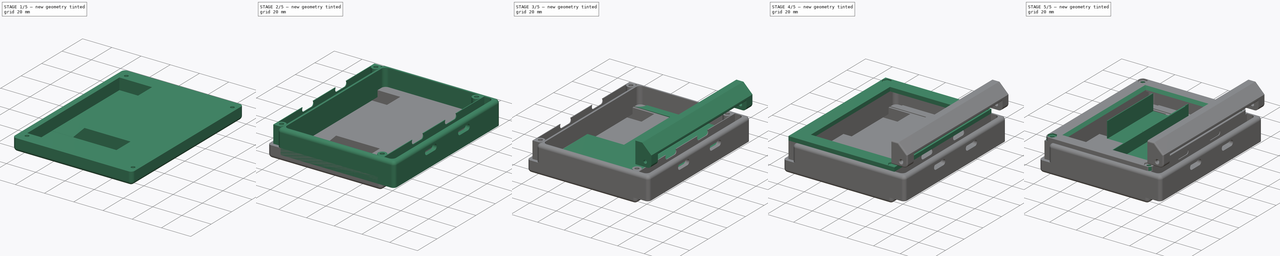
[diagram: build sequence overview — one tinted view per stage of 5, left to right]
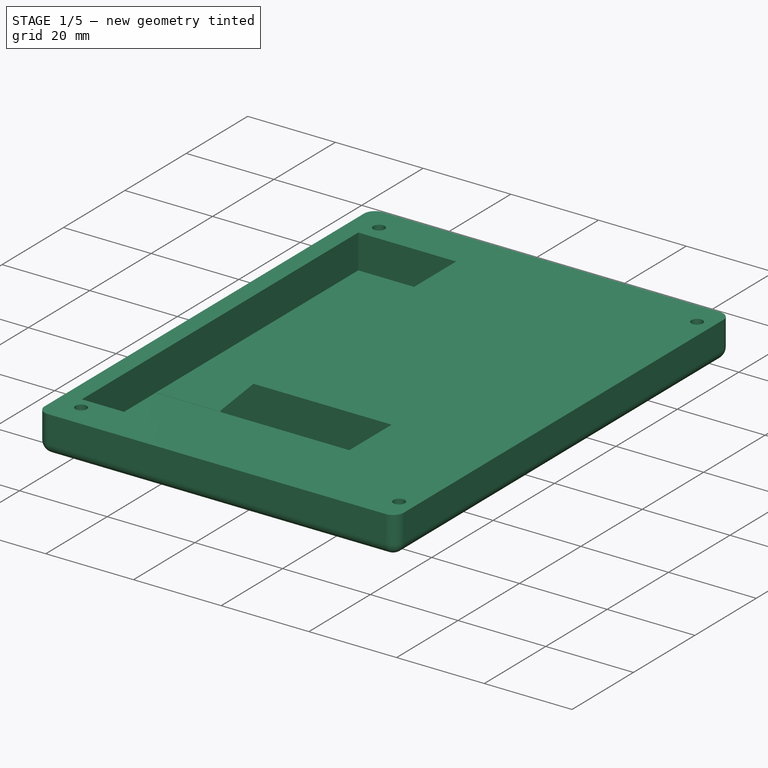
[diagram: stage 1 of 5 — iso view after this stage's code; geometry added in this stage tinted green]
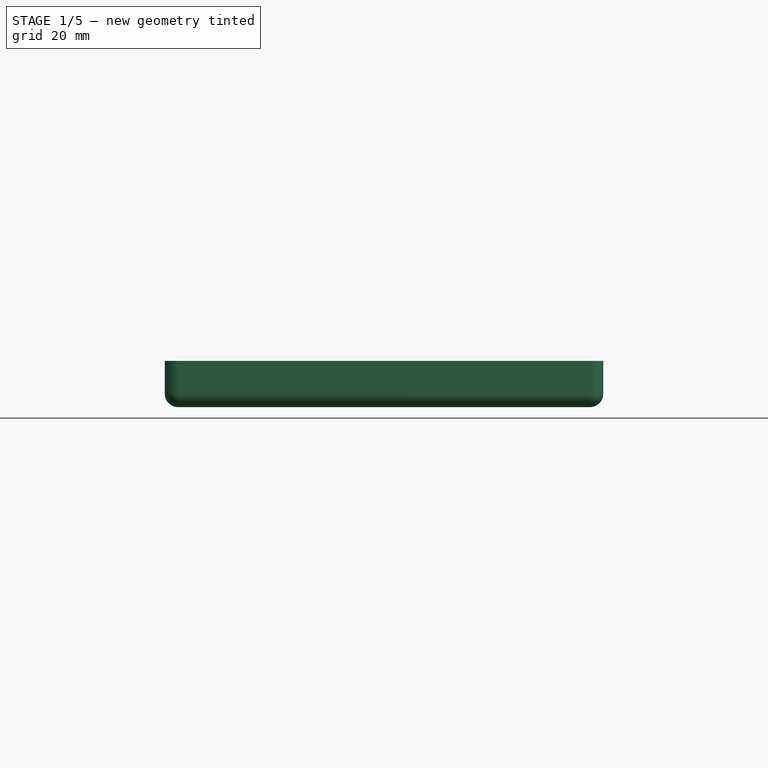
[diagram: stage 1 of 5 — front view after this stage's code; geometry added in this stage tinted green]
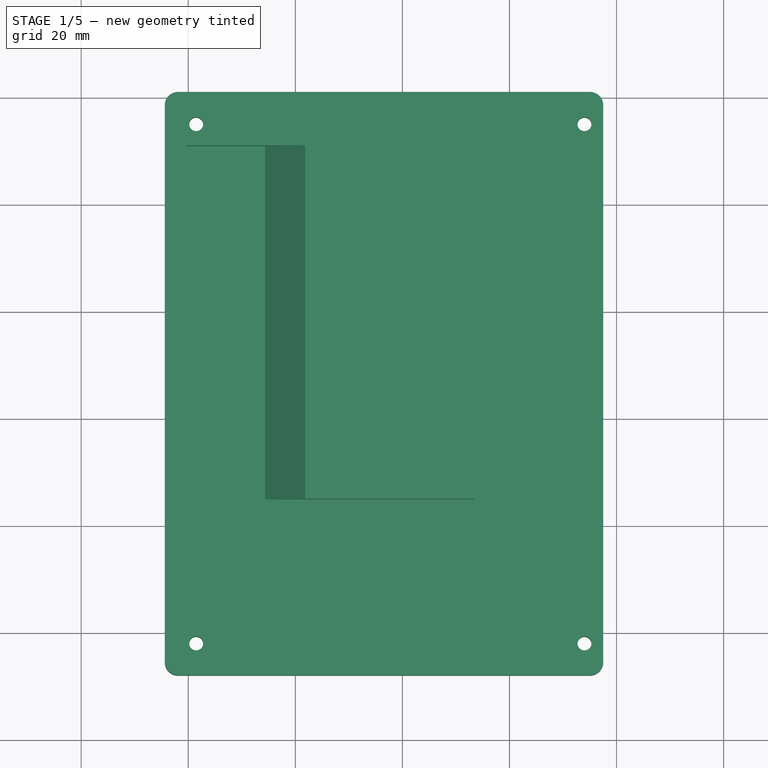
[diagram: stage 1 of 5 — top view after this stage's code; geometry added in this stage tinted green]
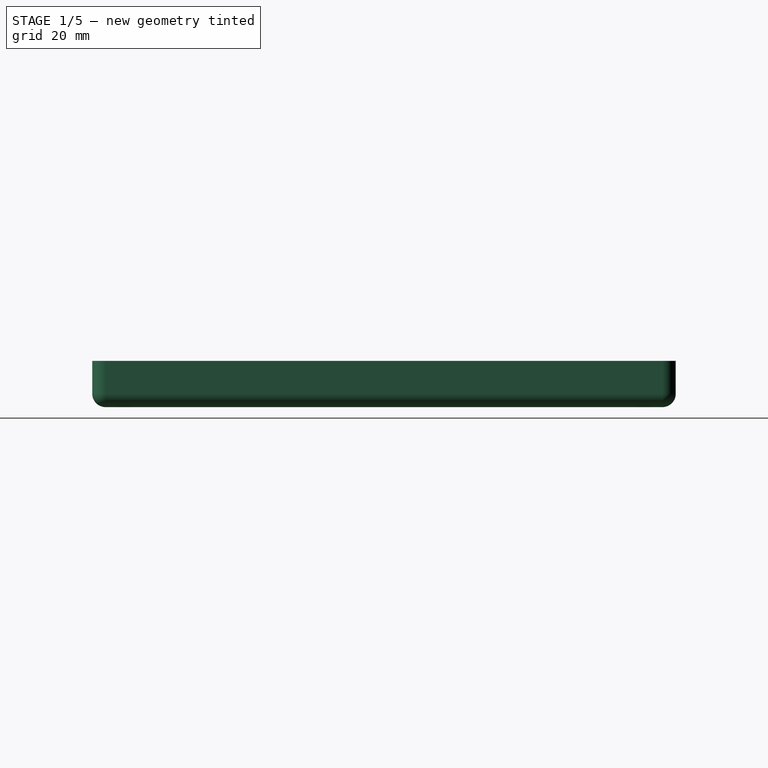
[diagram: stage 1 of 5 — right view after this stage's code; geometry added in this stage tinted green]
FCSTD DOCUMENT  (FreeCAD 0.21R33771 (Git))
Label: battery-side
License: All rights reserved
LicenseURL: https://en.wikipedia.org/wiki/All_rights_reserved
objects: Sketcher::SketchObject×19, PartDesign::Pocket×11, PartDesign::Body×9, PartDesign::Pad×8, PartDesign::Fillet×8, App::Part×7, PartDesign::Chamfer×6
note: 94 computed .brp shape members not serialized (recipe doc carries the construction recipe); baked Part::Feature solids carry a one-line shape summary decoded from their .brp

FEATURE [PartDesign::Body] Body002
  Group = -> [Sketch002,Pad002,Sketch059,Pocket026]
  Origin = -> Origin005
  Tip = -> Pocket026
FEATURE [App::Part] Part002  label="epaper module tray"
  Group = -> [Body002]
  Origin = -> Origin004
  Placement = pos=(7,0,0) rot=(0,0,1;0rad)
FEATURE [Sketcher::SketchObject] Sketch060
  AttachmentOffset = pos=(0,0,-61) rot=(0,0,1;0rad)
  FullyConstrained = false
  MapMode = 5
  Placement = pos=(0,61,1.35e-14) rot=(1,0,0;1.5708rad)
  Support = -> [XZ_Plane056]
  sketch-geometry (4):
    g0: LineSegment StartX=-44.4037 StartY=-12.5015 StartZ=0 EndX=37.5266 EndY=-12.5015 EndZ=0
    g1: LineSegment StartX=37.5266 StartY=-12.5015 StartZ=0 EndX=37.5266 EndY=-21.1381 EndZ=0
    g2: LineSegment StartX=37.5266 StartY=-21.1381 StartZ=0 EndX=-44.4037 EndY=-21.1381 EndZ=0
    g3: LineSegment StartX=-44.4037 StartY=-21.1381 StartZ=0 EndX=-44.4037 EndY=-12.5015 EndZ=0
  constraints (8):
    c: Coincident(g0,g1)
    c: Coincident(g1,g2)
    c: Coincident(g2,g3)
    c: Coincident(g3,g0)
    c: Horizontal(g0)
    c: Horizontal(g2)
    c: Vertical(g1)
    c: Vertical(g3)
FEATURE [PartDesign::Pad] Pad014
  Direction = (0,-1,2e-16)
  Length = 109
  Length2 = 10
  Placement = pos=(0,0,0) rot=(1,0,0;1.5708rad)
  Profile = -> Sketch060
  ReferenceAxis = -> Sketch060 [N_Axis]
  Type = 0
FEATURE [PartDesign::Fillet] Fillet032  label="Fillet033"
  Base = -> Pad014 [Edge11,Edge6,Edge9,Edge8,Edge5,Edge7,Edge10,Edge12]
  BaseFeature = -> Pad014
  Placement = pos=(0,0,0) rot=(1,0,0;1.5708rad)
  Radius = 2.5
  SupportTransform = false
  UseAllEdges = false
FEATURE [Sketcher::SketchObject] Sketch061
  AttachmentOffset = pos=(0,0,39) rot=(0,0,1;0rad)
  FullyConstrained = false
  MapMode = 5
  Placement = pos=(0,-39,-8.7e-15) rot=(1,0,0;1.5708rad)
  Support = -> [XZ_Plane056]
  sketch-geometry (4):
    g0: LineSegment StartX=13.3456 StartY=-20.3299 StartZ=0 EndX=-40.4767 EndY=-20.3299 EndZ=0
    g1: LineSegment StartX=-40.4767 StartY=-20.3299 StartZ=0 EndX=-40.4767 EndY=-1.29457 EndZ=0
    g2: LineSegment StartX=-40.4767 StartY=-1.29457 StartZ=0 EndX=13.3456 EndY=-1.29457 EndZ=0
    g3: LineSegment StartX=13.3456 StartY=-1.29457 StartZ=0 EndX=13.3456 EndY=-20.3299 EndZ=0
  constraints (8):
    c: Coincident(g0,g1)
    c: Coincident(g1,g2)
    c: Coincident(g2,g3)
    c: Coincident(g3,g0)
    c: Horizontal(g0)
    c: Horizontal(g2)
    c: Vertical(g1)
    c: Vertical(g3)
FEATURE [PartDesign::Pocket] Pocket028
  BaseFeature = -> Fillet032
  Direction = (0,1,-2e-16)
  Length = 24
  Length2 = 5
  Placement = pos=(0,0,0) rot=(1,0,0;1.5708rad)
  Profile = -> Sketch061
  ReferenceAxis = -> Sketch061 [N_Axis]
  Type = 0
FEATURE [Sketcher::SketchObject] Sketch062
  AttachmentOffset = pos=(0,0,15) rot=(0,0,1;0rad)
  FullyConstrained = false
  MapMode = 5
  Placement = pos=(0,-15,-3.3e-15) rot=(1,0,0;1.5708rad)
  Support = -> [XZ_Plane056]
  sketch-geometry (4):
    g0: LineSegment StartX=-40.468 StartY=-20.2949 StartZ=0 EndX=-25.6424 EndY=-20.2949 EndZ=0
    g1: LineSegment StartX=-25.6424 StartY=-20.2949 StartZ=0 EndX=-25.6424 EndY=-11.2092 EndZ=0
    g2: LineSegment StartX=-25.6424 StartY=-11.2092 StartZ=0 EndX=-40.468 EndY=-11.2092 EndZ=0
    g3: LineSegment StartX=-40.468 StartY=-11.2092 StartZ=0 EndX=-40.468 EndY=-20.2949 EndZ=0
  constraints (8):
    c: Coincident(g0,g1)
    c: Coincident(g1,g2)
    c: Coincident(g2,g3)
    c: Coincident(g3,g0)
    c: Horizontal(g0)
    c: Horizontal(g2)
    c: Vertical(g1)
    c: Vertical(g3)
FEATURE [PartDesign::Pocket] Pocket029
  BaseFeature = -> Pocket028
  Direction = (0,1,-2e-16)
  Length = 66
  Length2 = 5
  Placement = pos=(0,0,0) rot=(1,0,0;1.5708rad)
  Profile = -> Sketch062
  ReferenceAxis = -> Sketch062 [N_Axis]
  Type = 0
FEATURE [PartDesign::Chamfer] Chamfer015
  Angle = 45
  Base = -> Pocket029 [Edge11]
  BaseFeature = -> Pocket029
  ChamferType = 0
  FlipDirection = false
  Placement = pos=(0,0,0) rot=(1,0,0;1.5708rad)
  Size = 7.5
  Size2 = 1
  SupportTransform = false
  UseAllEdges = false
FEATURE [Sketcher::SketchObject] Sketch063
  FullyConstrained = true
  MapMode = 5
  Placement = pos=(0,-1.4e-14,-21.1381) rot=(1,0,0;3.14159rad)
  Support = -> [Chamfer015]
  sketch-geometry (4):
    g0: Circle CenterX=-38.52 CenterY=42.0371 CenterZ=0 NormalX=0 NormalY=0 NormalZ=1 AngleXU=0 Radius=1.3
    g1: Circle CenterX=34.0083 CenterY=42.0371 CenterZ=0 NormalX=0 NormalY=0 NormalZ=1 AngleXU=0 Radius=1.3
    g2: Circle CenterX=34.0083 CenterY=-54.9772 CenterZ=0 NormalX=0 NormalY=0 NormalZ=1 AngleXU=0 Radius=1.3
    g3: Circle CenterX=-38.52 CenterY=-54.9772 CenterZ=0 NormalX=0 NormalY=0 NormalZ=1 AngleXU=0 Radius=1.3
  constraints (11):
    c: Equal(g3,g2)
    c: Equal(g3,g1)
    c: Equal(g3,g0)
    c: Diameter(g3) = 2.6
    c: Horizontal(g0,g1)
    c: Horizontal(g3,g2)
    c: Vertical(g3,g0)
    c: Vertical(g1,g2)
    c: Block(g0)
    c: Block(g3)
    c: Block(g2)
FEATURE [PartDesign::Pocket] Pocket030
  BaseFeature = -> Chamfer015
  Direction = (0,2e-16,1)
  Length = 5
  Length2 = 5
  Placement = pos=(0,0,0) rot=(1,0,0;1.5708rad)
  Profile = -> Sketch063
  ReferenceAxis = -> Sketch063 [N_Axis]
  Type = 1
FEATURE [PartDesign::Chamfer] Chamfer016
  Angle = 45
  Base = -> Pocket030 [Edge59,Edge65,Edge62,Edge38]
  BaseFeature = -> Pocket030
  ChamferType = 0
  FlipDirection = false
  Placement = pos=(0,0,0) rot=(1,0,0;1.5708rad)
  Size = 1
  Size2 = 1
  SupportTransform = false
  UseAllEdges = false
FEATURE [PartDesign::Body] Body013
  Group = -> [Sketch060,Pad014,Fillet032,Sketch061,Pocket028,Sketch062,Pocket029,Chamfer015,Sketch063,Pocket030,Chamfer016]
  Origin = -> Origin056
  Tip = -> Chamfer016
FEATURE [App::Part] Part021  label="proto-rear-cover"
  Group = -> [Body013]
  Origin = -> Origin055
  Placement = pos=(6.89,0,-0.09) rot=(0,0,1;0rad)
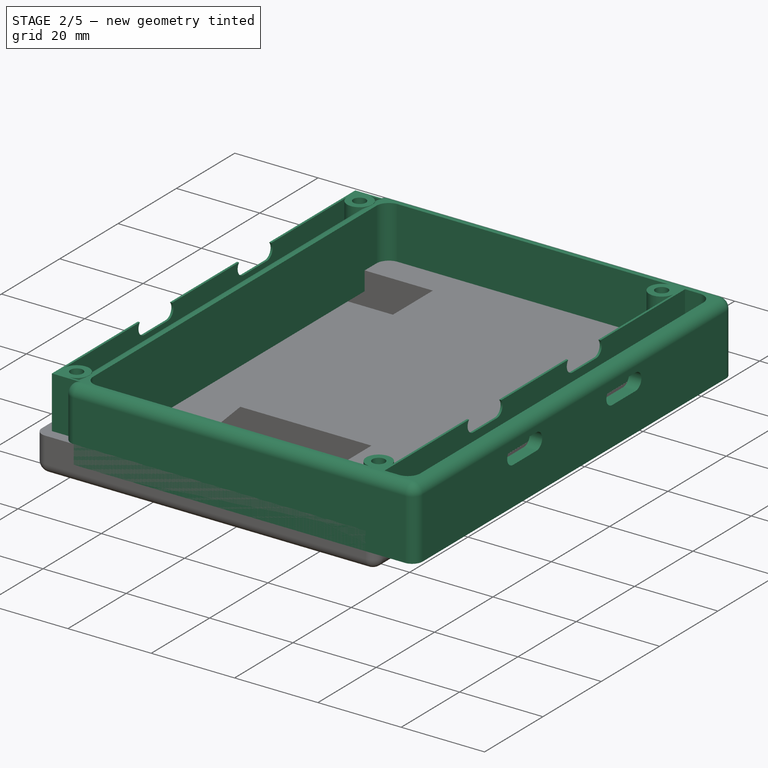
[diagram: stage 2 of 5 — iso view after this stage's code; geometry added in this stage tinted green]
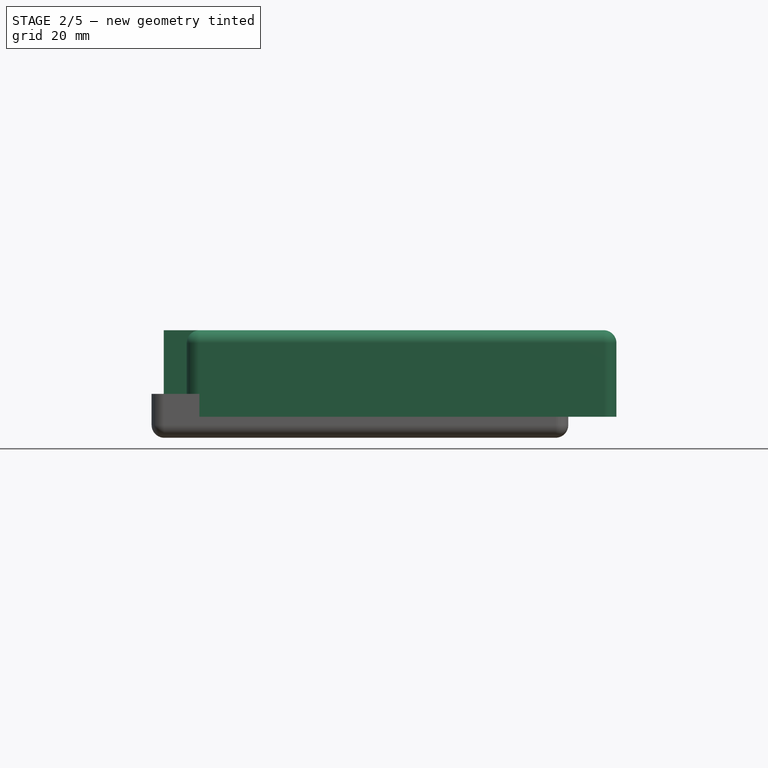
[diagram: stage 2 of 5 — front view after this stage's code; geometry added in this stage tinted green]
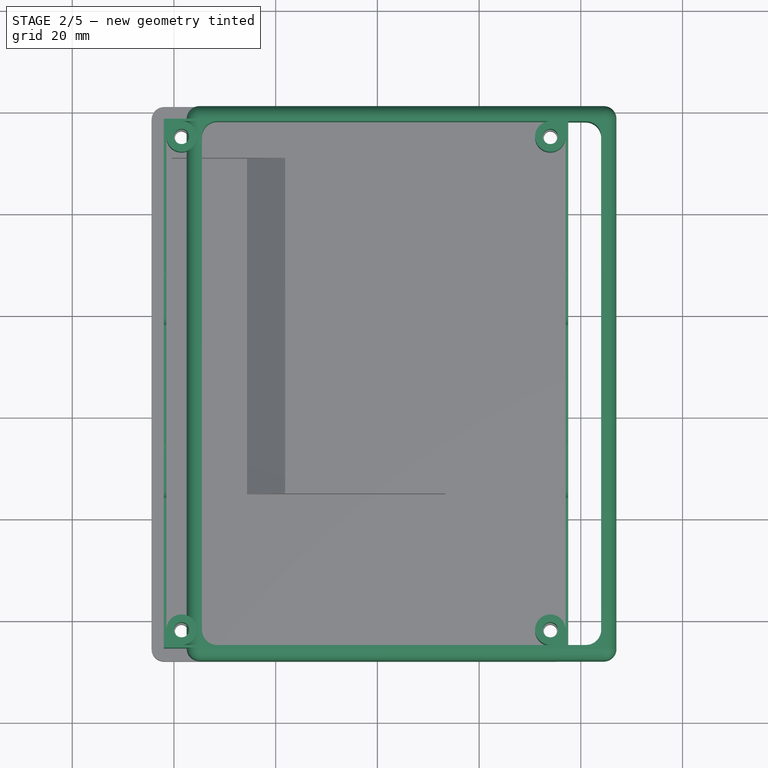
[diagram: stage 2 of 5 — top view after this stage's code; geometry added in this stage tinted green]
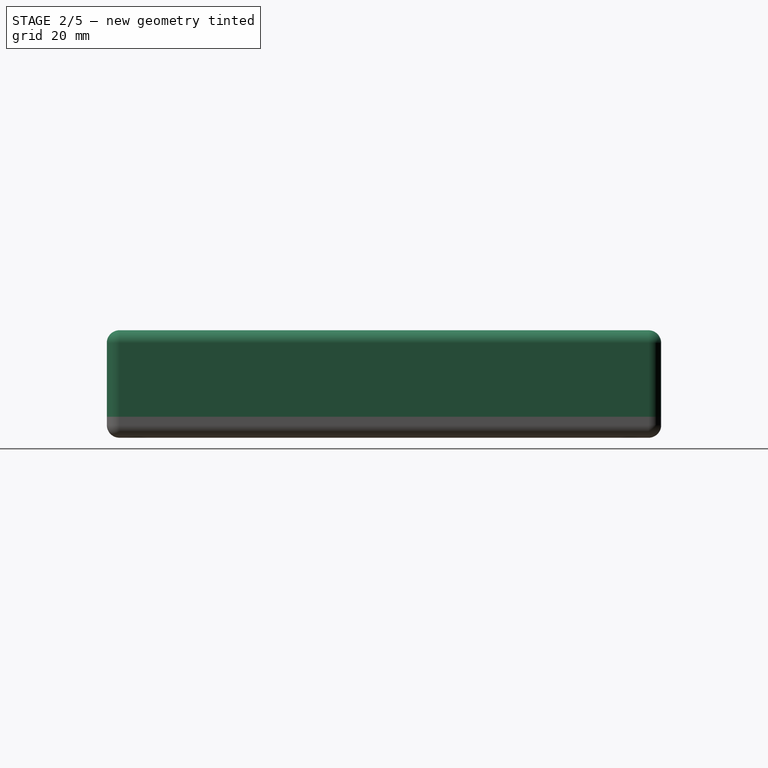
[diagram: stage 2 of 5 — right view after this stage's code; geometry added in this stage tinted green]
FEATURE [PartDesign::Body] Body001
  Group = -> [Sketch001,Pad001]
  Origin = -> Origin003
  Tip = -> Pad001
FEATURE [App::Part] Part001  label="Stepdown module tray"
  Group = -> [Body001]
  Origin = -> Origin002
  Placement = pos=(-7.47,3.01,0) rot=(0,0,1;0rad)
FEATURE [Sketcher::SketchObject] Sketch002
  FullyConstrained = false
  MapMode = 5
  Support = -> [XY_Plane005]
  sketch-geometry (16):
    g0: LineSegment StartX=34 StartY=-45 StartZ=0 EndX=-38.5 EndY=-45 EndZ=0
    g1: LineSegment StartX=-41.5 StartY=-42 StartZ=0 EndX=-41.5 EndY=55 EndZ=0
    g2: LineSegment StartX=-38.5 StartY=58 StartZ=0 EndX=34 EndY=58 EndZ=0
    g3: LineSegment StartX=37 StartY=55 StartZ=0 EndX=37 EndY=-42 EndZ=0
    g4: LineSegment StartX=-42 StartY=58.5 StartZ=0 EndX=37.5 EndY=58.5 EndZ=0
    g5: LineSegment StartX=37.5 StartY=58.5 StartZ=0 EndX=37.5 EndY=-45.5 EndZ=0
    g6: LineSegment StartX=37.5 StartY=-45.5 StartZ=0 EndX=-42 EndY=-45.5 EndZ=0
    g7: LineSegment StartX=-42 StartY=-45.5 StartZ=0 EndX=-42 EndY=58.5 EndZ=0
    g8: Circle CenterX=-38.5 CenterY=55 CenterZ=0 NormalX=0 NormalY=0 NormalZ=1 AngleXU=0 Radius=1.5
    g9: Circle CenterX=34 CenterY=55 CenterZ=0 NormalX=0 NormalY=0 NormalZ=1 AngleXU=0 Radius=1.5
    g10: Circle CenterX=-38.5 CenterY=-42 CenterZ=0 NormalX=0 NormalY=0 NormalZ=1 AngleXU=0 Radius=1.5
    g11: Circle CenterX=34 CenterY=-42 CenterZ=0 NormalX=0 NormalY=0 NormalZ=1 AngleXU=0 Radius=1.5
    g12: ArcOfCircle CenterX=-38.5 CenterY=55 CenterZ=0 NormalX=0 NormalY=0 NormalZ=1 AngleXU=0 Radius=3 StartAngle=3.14159 EndAngle=7.85398
    g13: ArcOfCircle CenterX=34 CenterY=55 CenterZ=0 NormalX=0 NormalY=0 NormalZ=1 AngleXU=0 Radius=3 StartAngle=1.5708 EndAngle=6.28319
    g14: ArcOfCircle CenterX=34 CenterY=-42 CenterZ=0 NormalX=0 NormalY=0 NormalZ=1 AngleXU=0 Radius=3 StartAngle=0 EndAngle=4.71239
    g15: ArcOfCircle CenterX=-38.5 CenterY=-42 CenterZ=0 NormalX=0 NormalY=0 NormalZ=1 AngleXU=0 Radius=3 StartAngle=4.71239 EndAngle=9.42478
  constraints (32):
    c: Horizontal(g0)
    c: Horizontal(g2)
    c: Vertical(g1)
    c: Vertical(g3)
    c: Coincident(g4,g5)
    c: Coincident(g5,g6)
    c: Coincident(g6,g7)
    c: Coincident(g7,g4)
    c: Horizontal(g4)
    c: Horizontal(g6)
    c: Vertical(g5)
    c: Vertical(g7)
    c: Equal(g10,g11)
    c: Equal(g10,g8)
    c: Equal(g10,g9)
    c: Diameter(g10) = 3
    c: Coincident(g12,g8)
    c: Coincident(g13,g9)
    c: Coincident(g14,g11)
    c: Coincident(g15,g10)
    c: Equal(g12,g13)
    c: Equal(g12,g14)
    c: Equal(g12,g15)
    c: Diameter(g12) = 6
    c: Coincident(g13,g3)
    c: Coincident(g13,g2)
    c: Coincident(g12,g2)
    c: Coincident(g12,g1)
    c: Coincident(g1,g15)
    c: Coincident(g0,g15)
    c: Coincident(g14,g0)
    c: Coincident(g14,g3)
FEATURE [PartDesign::Pad] Pad002
  Direction = (0,0,1)
  Length = 12.5
  Length2 = 10
  Profile = -> Sketch002
  ReferenceAxis = -> Sketch002 [N_Axis]
  Reversed = true
  Type = 0
FEATURE [Sketcher::SketchObject] Sketch010
  FullyConstrained = true
  MapMode = 5
  Support = -> [XY_Plane010]
  sketch-geometry (8):
    g0: LineSegment StartX=-34.5 StartY=58 StartZ=0 EndX=44 EndY=58 EndZ=0
    g1: LineSegment StartX=44 StartY=58 StartZ=0 EndX=44 EndY=-45 EndZ=0
    g2: LineSegment StartX=44 StartY=-45 StartZ=0 EndX=-34.5 EndY=-45 EndZ=0
    g3: LineSegment StartX=-34.5 StartY=-45 StartZ=0 EndX=-34.5 EndY=58 EndZ=0
    g4: LineSegment StartX=-37.5 StartY=61 StartZ=0 EndX=47 EndY=61 EndZ=0
    g5: LineSegment StartX=47 StartY=61 StartZ=0 EndX=47 EndY=-48 EndZ=0
    g6: LineSegment StartX=47 StartY=-48 StartZ=0 EndX=-37.5 EndY=-48 EndZ=0
    g7: LineSegment StartX=-37.5 StartY=-48 StartZ=0 EndX=-37.5 EndY=61 EndZ=0
  constraints (24):
    c: Coincident(g0,g1)
    c: Coincident(g1,g2)
    c: Coincident(g2,g3)
    c: Coincident(g3,g0)
    c: Horizontal(g0)
    c: Horizontal(g2)
    c: Vertical(g1)
    c: Vertical(g3)
    c: Coincident(g4,g5)
    c: Coincident(g5,g6)
    c: Coincident(g6,g7)
    c: Coincident(g7,g4)
    c: Horizontal(g4)
    c: Horizontal(g6)
    c: Vertical(g5)
    c: Vertical(g7)
    c: DistanceX(g0,g0) = 78.5
    c: DistanceY(g3,g3) = 103
    c: DistanceY(g1,g-1) = 45
    c: DistanceX(g-1,g1) = 44
    c: DistanceY(g0,g4) = 3
    c: DistanceX(g4,g0) = 3
    c: DistanceX(g0,g4) = 3
    c: DistanceY(g5,g1) = 3
FEATURE [PartDesign::Pad] Pad004
  Direction = (0,0,1)
  Length = 17
  Length2 = 10
  Profile = -> Sketch010
  ReferenceAxis = -> Sketch010 [N_Axis]
  Reversed = true
  Type = 0
FEATURE [PartDesign::Fillet] Fillet
  Base = -> Pad004 [Edge13,Edge20,Edge14,Edge17]
  BaseFeature = -> Pad004
  Radius = 3
  SupportTransform = false
  UseAllEdges = false
FEATURE [PartDesign::Fillet] Fillet002
  Base = -> Fillet [Edge34,Edge33,Edge35,Edge36,Edge15,Edge14,Edge13,Edge12]
  BaseFeature = -> Fillet
  Radius = 2.5
  SupportTransform = false
  UseAllEdges = false
FEATURE [PartDesign::Body] Body012
  Group = -> [Sketch051,Pad013]
  Origin = -> Origin054
  Tip = -> Pad013
FEATURE [App::Part] Part005  label="lisa"
  Group = -> [Body012]
  Origin = -> Origin053
FEATURE [Sketcher::SketchObject] Sketch058
  AttachmentOffset = pos=(0,0,41) rot=(0,0,1;0rad)
  FullyConstrained = false
  MapMode = 5
  Placement = pos=(41,-9.1e-15,9.1e-15) rot=(0.57735,0.57735,0.57735;2.0944rad)
  Support = -> [YZ_Plane010]
  sketch-geometry (8):
    g0: ArcOfCircle CenterX=-14.532 CenterY=-5.85902 CenterZ=0 NormalX=0 NormalY=0 NormalZ=1 AngleXU=0 Radius=2 StartAngle=1.5708 EndAngle=4.71239
    g1: ArcOfCircle CenterX=-6.53204 CenterY=-5.85902 CenterZ=0 NormalX=0 NormalY=0 NormalZ=1 AngleXU=0 Radius=2 StartAngle=4.71239 EndAngle=7.85398
    g2: LineSegment StartX=-14.532 StartY=-7.85902 StartZ=0 EndX=-6.53204 EndY=-7.85902 EndZ=0
    g3: LineSegment StartX=-6.53204 StartY=-3.85902 StartZ=0 EndX=-14.532 EndY=-3.85902 EndZ=0
    g4: ArcOfCircle CenterX=19.468 CenterY=-5.85902 CenterZ=0 NormalX=0 NormalY=0 NormalZ=1 AngleXU=0 Radius=2 StartAngle=1.5708 EndAngle=4.71239
    g5: ArcOfCircle CenterX=27.468 CenterY=-5.85902 CenterZ=0 NormalX=0 NormalY=0 NormalZ=1 AngleXU=0 Radius=2 StartAngle=4.71239 EndAngle=7.85398
    g6: LineSegment StartX=19.468 StartY=-7.85902 StartZ=0 EndX=27.468 EndY=-7.85902 EndZ=0
    g7: LineSegment StartX=27.468 StartY=-3.85902 StartZ=0 EndX=19.468 EndY=-3.85902 EndZ=0
  constraints (18):
    c: Tangent(g0,g2) = -1.5708
    c: Tangent(g2,g1) = -1.5708
    c: Tangent(g1,g3) = -1.5708
    c: Tangent(g3,g0) = -1.5708
    c: Equal(g0,g1)
    c: Tangent(g4,g6) = -1.5708
    c: Tangent(g6,g5) = -1.5708
    c: Tangent(g5,g7) = -1.5708
    c: Tangent(g7,g4) = -1.5708
    c: Equal(g4,g5)
    c: Horizontal(g6)
    c: Horizontal(g0,g1)
    c: Equal(g7,g3)
    c: Equal(g1,g4)
    c: DistanceX(g1,g4) = 26
    c: DistanceY(g0,g0) = 4
    c: DistanceX(g3,g3) = 8
    c: Horizontal(g1,g4)
FEATURE [PartDesign::Pocket] Pocket025
  BaseFeature = -> Fillet002
  Direction = (-1,2e-16,-3e-16)
  Length = 19
  Length2 = 5
  Midplane = true
  Profile = -> Sketch058
  ReferenceAxis = -> Sketch058 [N_Axis]
  Type = 0
FEATURE [PartDesign::Body] Body005
  Group = -> [Sketch010,Pad004,Fillet,Fillet002,Sketch058,Pocket025]
  Origin = -> Origin010
  Placement = pos=(0,0,4.5) rot=(0,0,1;0rad)
  Tip = -> Pocket025
FEATURE [App::Part] Part004  label="outer-shell"
  Group = -> [Body005,Body011]
  Origin = -> Origin009
FEATURE [Sketcher::SketchObject] Sketch059
  AttachmentOffset = pos=(0,0,37.5) rot=(0,0,1;0rad)
  FullyConstrained = false
  MapMode = 5
  Placement = pos=(37.5,-8.3e-15,8.3e-15) rot=(0.57735,0.57735,0.57735;2.0944rad)
  Support = -> [YZ_Plane005]
  sketch-geometry (8):
    g0: ArcOfCircle CenterX=-14.5434 CenterY=-1.31422 CenterZ=0 NormalX=0 NormalY=0 NormalZ=1 AngleXU=0 Radius=2 StartAngle=1.5708 EndAngle=4.71239
    g1: ArcOfCircle CenterX=-6.54335 CenterY=-1.31422 CenterZ=0 NormalX=0 NormalY=0 NormalZ=1 AngleXU=0 Radius=2 StartAngle=4.71239 EndAngle=7.85398
    g2: LineSegment StartX=-14.5434 StartY=-3.31422 StartZ=0 EndX=-6.54335 EndY=-3.31422 EndZ=0
    g3: LineSegment StartX=-6.54335 StartY=0.685778 StartZ=0 EndX=-14.5434 EndY=0.685778 EndZ=0
    g4: ArcOfCircle CenterX=19.4566 CenterY=-1.31422 CenterZ=0 NormalX=0 NormalY=0 NormalZ=1 AngleXU=0 Radius=2 StartAngle=1.5708 EndAngle=4.71239
    g5: ArcOfCircle CenterX=27.4566 CenterY=-1.31422 CenterZ=0 NormalX=0 NormalY=0 NormalZ=1 AngleXU=0 Radius=2 StartAngle=4.71239 EndAngle=7.85398
    g6: LineSegment StartX=19.4566 StartY=-3.31422 StartZ=0 EndX=27.4566 EndY=-3.31422 EndZ=0
    g7: LineSegment StartX=27.4566 StartY=0.685778 StartZ=0 EndX=19.4566 EndY=0.685778 EndZ=0
  constraints (18):
    c: Tangent(g0,g2) = -1.5708
    c: Tangent(g2,g1) = -1.5708
    c: Tangent(g1,g3) = -1.5708
    c: Tangent(g3,g0) = -1.5708
    c: Equal(g0,g1)
    c: Horizontal(g2)
    c: Tangent(g4,g6) = -1.5708
    c: Tangent(g6,g5) = -1.5708
    c: Tangent(g5,g7) = -1.5708
    c: Tangent(g7,g4) = -1.5708
    c: Equal(g4,g5)
    c: Horizontal(g6)
    c: DistanceX(g0,g1) = 8
    c: DistanceY(g0,g0) = 4
    c: Horizontal(g1,g4)
    c: Equal(g3,g7)
    c: Equal(g0,g4)
    c: DistanceX(g1,g4) = 26
FEATURE [PartDesign::Pocket] Pocket026
  BaseFeature = -> Pad002
  Direction = (-1,2e-16,-3e-16)
  Length = 24
  Length2 = 5
  Profile = -> Sketch059
  ReferenceAxis = -> Sketch059 [N_Axis]
  Type = 1
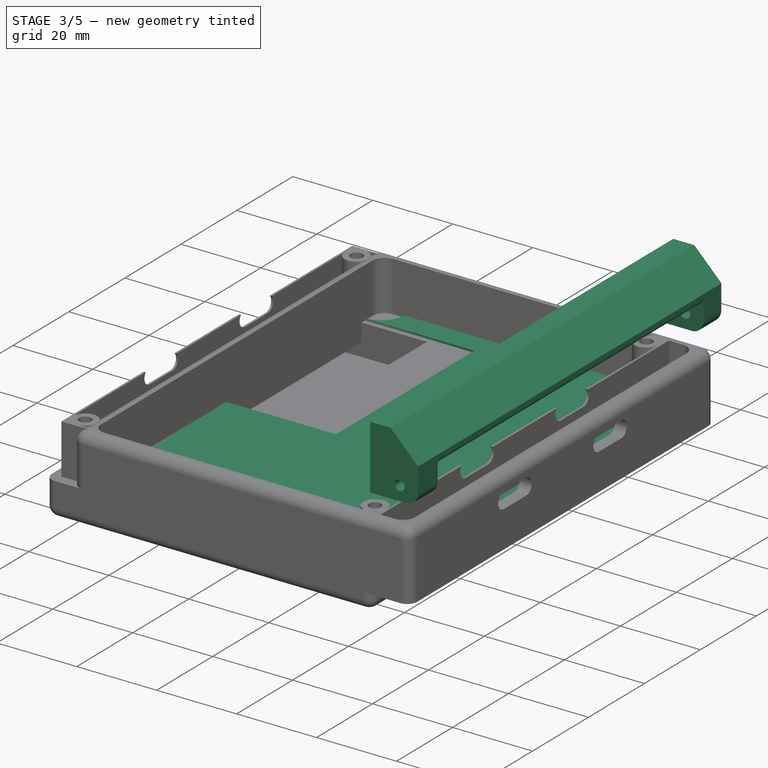
[diagram: stage 3 of 5 — iso view after this stage's code; geometry added in this stage tinted green]
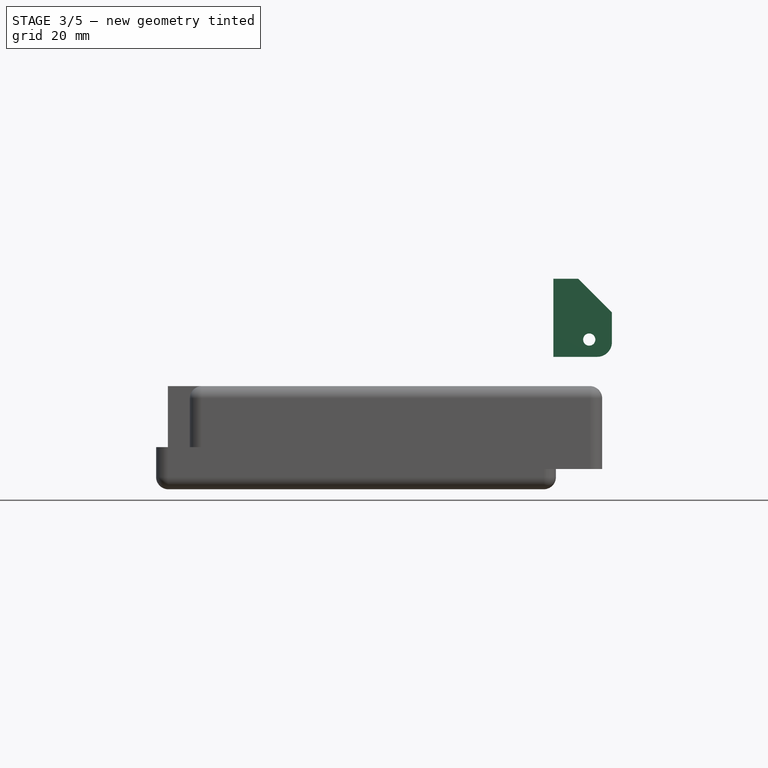
[diagram: stage 3 of 5 — front view after this stage's code; geometry added in this stage tinted green]
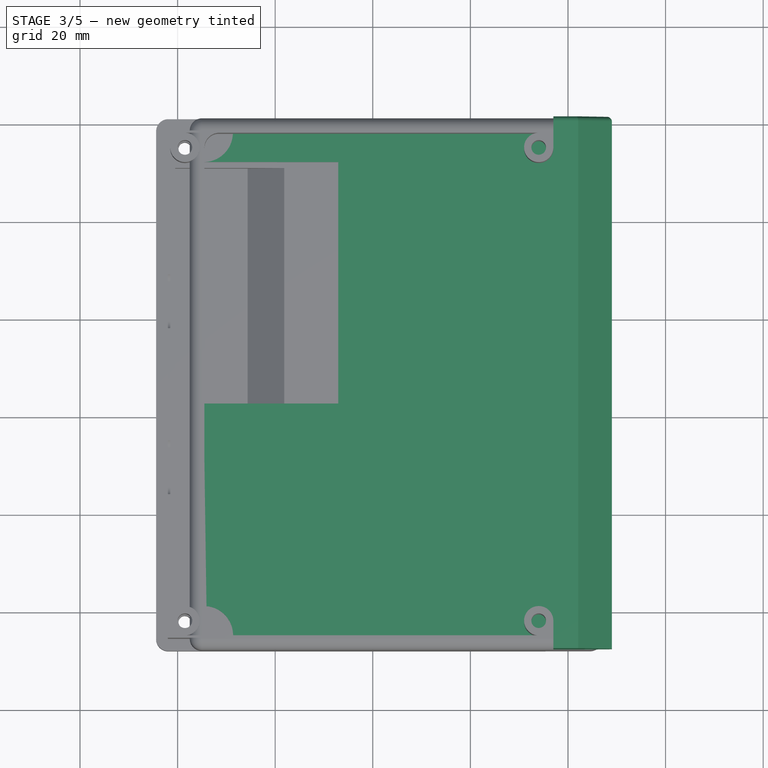
[diagram: stage 3 of 5 — top view after this stage's code; geometry added in this stage tinted green]
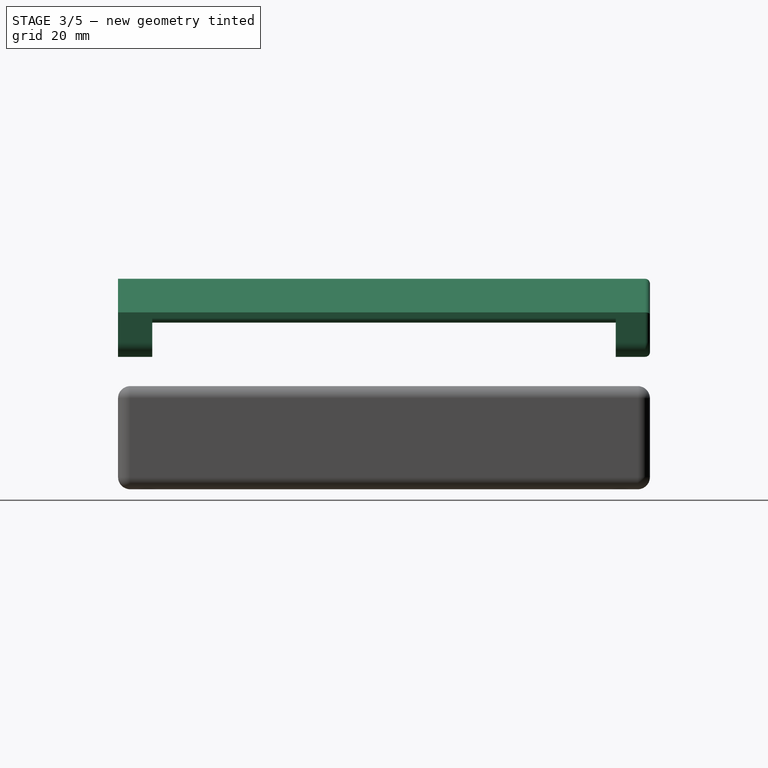
[diagram: stage 3 of 5 — right view after this stage's code; geometry added in this stage tinted green]
FEATURE [PartDesign::Body] Body004
  Group = -> [Sketch005,Pad003,Sketch003,Sketch008,Sketch006,Sketch007,Pocket,Pocket001,Pocket002,Pocket003,Sketch009,Pocket004,Fillet001,Chamfer,Chamfer001]
  Origin = -> Origin008
  Tip = -> Chamfer001
FEATURE [App::Part] Part003  label="epaper module cover"
  Group = -> [Body003,Body004]
  Origin = -> Origin006
  Placement = pos=(6.69,0.04,1.56) rot=(0,0,1;0rad)
FEATURE [Sketcher::SketchObject] Sketch049
  AttachmentOffset = pos=(0,0,37) rot=(0,0,1;0rad)
  FullyConstrained = true
  MapMode = 5
  Placement = pos=(37,-8.2e-15,8.2e-15) rot=(0.57735,0.57735,0.57735;2.0944rad)
  Support = -> [YZ_Plane052]
  sketch-geometry (8):
    g0: LineSegment StartX=-48 StartY=6 StartZ=0 EndX=-41 EndY=6 EndZ=0
    g1: LineSegment StartX=-41 StartY=6 StartZ=0 EndX=-41 EndY=13 EndZ=0
    g2: LineSegment StartX=61 StartY=6 StartZ=0 EndX=54 EndY=6 EndZ=0
    g3: LineSegment StartX=54 StartY=6 StartZ=0 EndX=54 EndY=13 EndZ=0
    g4: LineSegment StartX=-48 StartY=22 StartZ=0 EndX=61 EndY=22 EndZ=0
    g5: LineSegment StartX=54 StartY=13 StartZ=0 EndX=-41 EndY=13 EndZ=0
    g6: LineSegment StartX=61 StartY=22 StartZ=0 EndX=61 EndY=6 EndZ=0
    g7: LineSegment StartX=-48 StartY=22 StartZ=0 EndX=-48 EndY=6 EndZ=0
  constraints (24):
    c: Coincident(g0,g1)
    c: Horizontal(g0)
    c: Vertical(g1)
    c: Coincident(g2,g3)
    c: Horizontal(g2)
    c: Vertical(g3)
    c: Horizontal(g4)
    c: Horizontal(g5)
    c: Coincident(g1,g5)
    c: Coincident(g5,g3)
    c: DistanceX(g4,g4) = 109
    c: Coincident(g6,g4)
    c: Coincident(g6,g2)
    c: Vertical(g6)
    c: Coincident(g7,g4)
    c: Coincident(g7,g0)
    c: Vertical(g7)
    c: Equal(g1,g3)
    c: Equal(g0,g2)
    c: DistanceX(g4,g-1) = 48
    c: DistanceY(g-1,g4) = 22
    c: DistanceX(g5,g5) = 95
    c: DistanceY(g6,g6) = 16
    c: DistanceY(g3,g3) = 7
FEATURE [PartDesign::Pad] Pad012
  Direction = (1,-2e-16,3e-16)
  Length = 12
  Length2 = 10
  Placement = pos=(0,0,0) rot=(0.57735,0.57735,0.57735;2.0944rad)
  Profile = -> Sketch049
  ReferenceAxis = -> Sketch049 [N_Axis]
  Type = 0
FEATURE [PartDesign::Chamfer] Chamfer011
  Angle = 45
  Base = -> Pad012 [Edge24]
  BaseFeature = -> Pad012
  ChamferType = 0
  FlipDirection = false
  Placement = pos=(0,0,0) rot=(0.57735,0.57735,0.57735;2.0944rad)
  Size = 6.9
  Size2 = 1
  SupportTransform = false
  UseAllEdges = false
FEATURE [PartDesign::Fillet] Fillet025  label="Fillet026"
  Base = -> Chamfer011 [Edge21]
  BaseFeature = -> Chamfer011
  Placement = pos=(0,0,0) rot=(0.57735,0.57735,0.57735;2.0944rad)
  Radius = 1
  SupportTransform = false
  UseAllEdges = false
FEATURE [PartDesign::Fillet] Fillet024  label="Fillet025"
  Base = -> Fillet025 [Edge4,Edge9]
  BaseFeature = -> Fillet025
  Placement = pos=(0,0,0) rot=(0.57735,0.57735,0.57735;2.0944rad)
  Radius = 3
  SupportTransform = false
  UseAllEdges = false
FEATURE [PartDesign::Fillet] Fillet026  label="Fillet027"
  Base = -> Fillet024 [Edge19,Edge16,Edge4,Edge18,Edge20]
  BaseFeature = -> Fillet024
  Placement = pos=(0,0,0) rot=(0.57735,0.57735,0.57735;2.0944rad)
  Radius = 1
  SupportTransform = false
  UseAllEdges = false
FEATURE [Sketcher::SketchObject] Sketch050
  FullyConstrained = true
  MapMode = 5
  Placement = pos=(2.68e-14,61,-1.34e-14) rot=(0.57735,0.57735,0.57735;4.18879rad)
  Support = -> [Fillet026]
  sketch-geometry (1):
    g0: Circle CenterX=9.54001 CenterY=44.3562 CenterZ=0 NormalX=0 NormalY=0 NormalZ=1 AngleXU=0 Radius=1.25
  constraints (2):
    c: Diameter(g0) = 2.5
    c: Block(g0)
FEATURE [PartDesign::Pocket] Pocket019
  BaseFeature = -> Fillet026
  Direction = (-4e-16,-1,2e-16)
  Length = 5
  Length2 = 5
  Placement = pos=(0,0,0) rot=(0.57735,0.57735,0.57735;2.0944rad)
  Profile = -> Sketch050
  ReferenceAxis = -> Sketch050 [N_Axis]
  Type = 1
FEATURE [PartDesign::Body] Body011  label="right"
  Group = -> [Sketch049,Pad012,Chamfer011,Fillet025,Fillet024,Fillet026,Sketch050,Pocket019,Chamfer012,Fillet030]
  Origin = -> Origin052
  Placement = pos=(7.01,12.97,9.54) rot=(1,0,0;3.14159rad)
  Tip = -> Fillet030
FEATURE [Sketcher::SketchObject] Sketch051
  AttachmentOffset = pos=(0,0,-12.5) rot=(0,0,1;0rad)
  FullyConstrained = false
  MapMode = 5
  Placement = pos=(0,0,-12.5) rot=(0,0,1;0rad)
  Support = -> [XY_Plane054]
  sketch-geometry (11):
    g0: LineSegment StartX=37.8749 StartY=58.209 StartZ=0 EndX=-28.6712 EndY=58.209 EndZ=0
    g1: LineSegment StartX=-28.6251 StartY=-44.7923 StartZ=0 EndX=37.8749 EndY=-44.7923 EndZ=0
    g2: LineSegment StartX=43.8749 StartY=-38.7923 StartZ=0 EndX=43.8749 EndY=52.2077 EndZ=0
    g3: ArcOfCircle CenterX=43.8749 CenterY=58.2077 CenterZ=0 NormalX=0 NormalY=0 NormalZ=1 AngleXU=0 Radius=6 StartAngle=3.14138 EndAngle=4.71239
    g4: ArcOfCircle CenterX=-34.6251 CenterY=-44.7923 CenterZ=0 NormalX=0 NormalY=0 NormalZ=1 AngleXU=0 Radius=6 StartAngle=6.28319 EndAngle=7.86166
    g5: ArcOfCircle CenterX=43.8749 CenterY=-44.7923 CenterZ=0 NormalX=0 NormalY=0 NormalZ=1 AngleXU=0 Radius=6 StartAngle=1.5708 EndAngle=3.14159
    g6: LineSegment StartX=-34.6712 StartY=-38.7925 StartZ=0 EndX=-34.6712 EndY=2.72802 EndZ=0
    g7: LineSegment StartX=-34.6712 StartY=2.72802 StartZ=0 EndX=-7.06594 EndY=2.72802 EndZ=0
    g8: LineSegment StartX=-7.06594 StartY=2.72802 StartZ=0 EndX=-7.06594 EndY=52.209 EndZ=0
    g9: LineSegment StartX=-7.06594 StartY=52.209 StartZ=0 EndX=-34.6712 EndY=52.209 EndZ=0
    g10: ArcOfCircle CenterX=-34.6712 CenterY=58.209 CenterZ=0 NormalX=0 NormalY=0 NormalZ=1 AngleXU=0 Radius=6 StartAngle=4.71239 EndAngle=6.28319
  constraints (24):
    c: Horizontal(g0)
    c: Horizontal(g1)
    c: Vertical(g2)
    c: DistanceY(g5,g3) = 103
    c: Equal(g3,g4)
    c: Equal(g3,g5)
    c: Diameter(g3) = 12
    c: Coincident(g1,g4)
    c: Coincident(g1,g5)
    c: Coincident(g2,g5)
    c: Coincident(g0,g3)
    c: Coincident(g2,g3)
    c: Coincident(g6,g4)
    c: Vertical(g6)
    c: Coincident(g7,g6)
    c: Horizontal(g7)
    c: Coincident(g8,g7)
    c: Vertical(g8)
    c: Coincident(g9,g8)
    c: Horizontal(g9)
    c: Equal(g7,g9)
    c: Diameter(g10) = 12
    c: Coincident(g10,g9)
    c: Coincident(g0,g10)
FEATURE [PartDesign::Pad] Pad013
  Direction = (0,0,1)
  Length = 0.5
  Length2 = 10
  Profile = -> Sketch051
  ReferenceAxis = -> Sketch051 [N_Axis]
  Type = 0
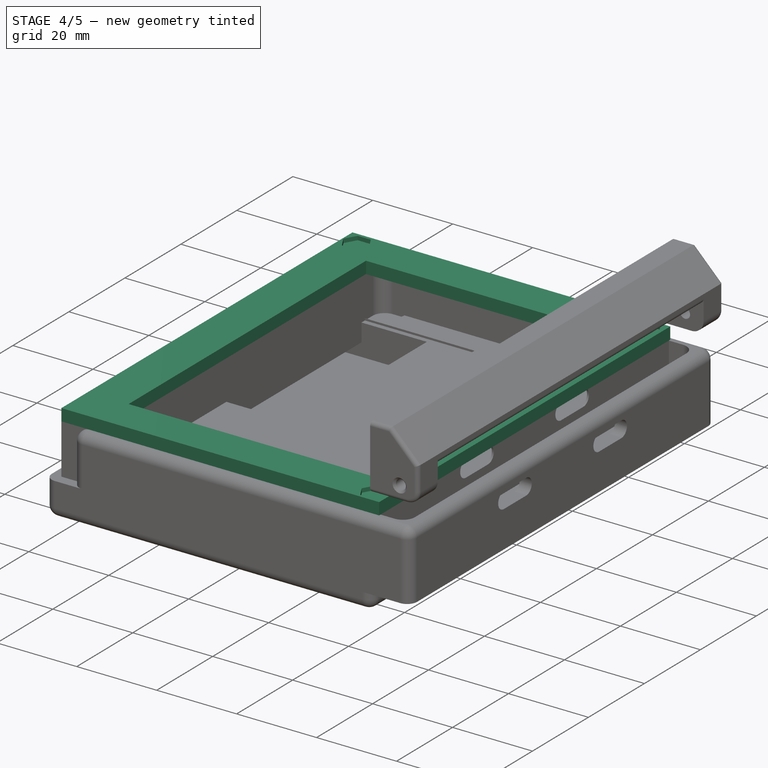
[diagram: stage 4 of 5 — iso view after this stage's code; geometry added in this stage tinted green]
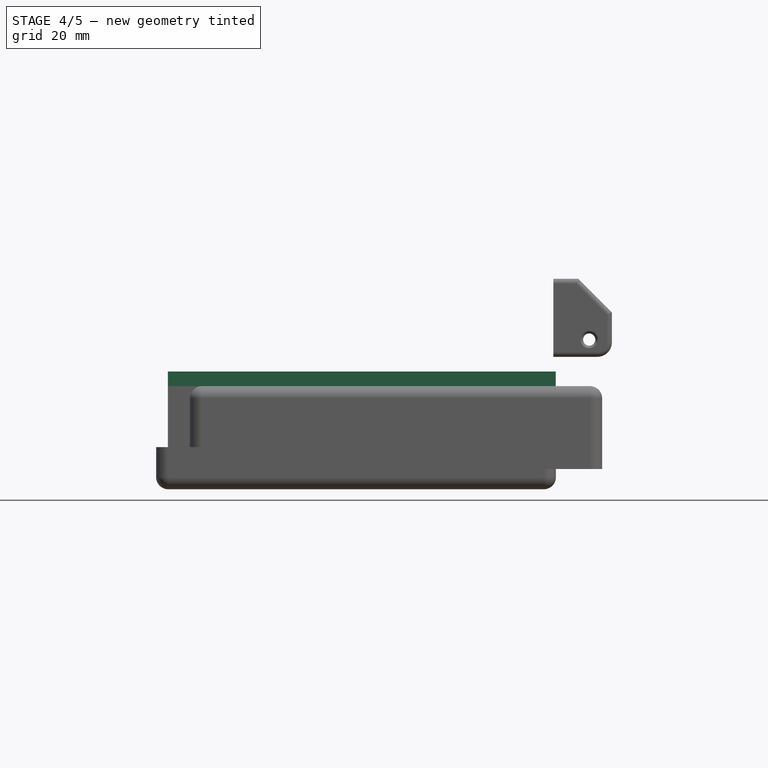
[diagram: stage 4 of 5 — front view after this stage's code; geometry added in this stage tinted green]
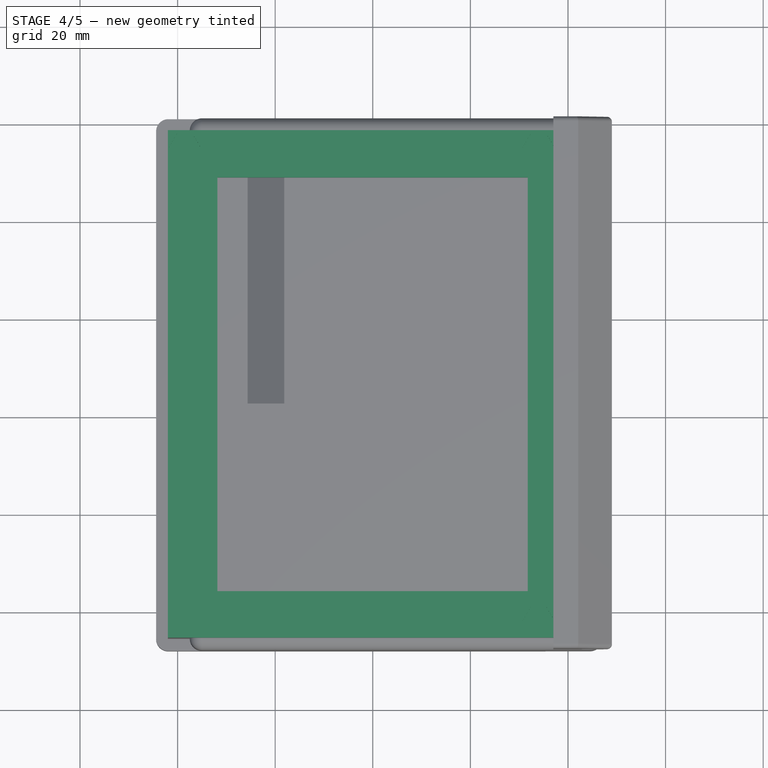
[diagram: stage 4 of 5 — top view after this stage's code; geometry added in this stage tinted green]
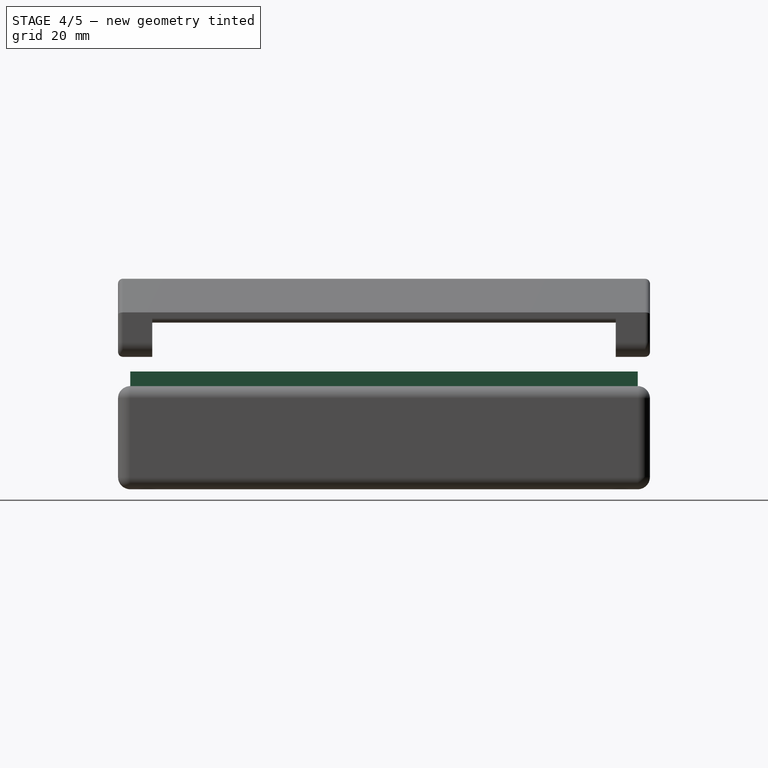
[diagram: stage 4 of 5 — right view after this stage's code; geometry added in this stage tinted green]
FEATURE [PartDesign::Body] Body003  label="nuts"
  Origin = -> Origin007
FEATURE [Sketcher::SketchObject] Sketch003
  AttachmentOffset = pos=(0,0,2) rot=(0,0,1;0rad)
  FullyConstrained = false
  MapMode = 5
  Placement = pos=(0,0,2) rot=(0,0,1;0rad)
  Support = -> [XY_Plane008]
  sketch-geometry (7):
    g0: LineSegment StartX=-35.284 StartY=54.9433 StartZ=0 EndX=-36.909 EndY=57.7579 EndZ=0
    g1: LineSegment StartX=-36.909 StartY=57.7579 StartZ=0 EndX=-40.159 EndY=57.7579 EndZ=0
    g2: LineSegment StartX=-40.159 StartY=57.7579 StartZ=0 EndX=-41.784 EndY=54.9433 EndZ=0
    g3: LineSegment StartX=-41.784 StartY=54.9433 StartZ=0 EndX=-40.159 EndY=52.1287 EndZ=0
    g4: LineSegment StartX=-40.159 StartY=52.1287 StartZ=0 EndX=-36.909 EndY=52.1287 EndZ=0
    g5: LineSegment StartX=-36.909 StartY=52.1287 StartZ=0 EndX=-35.284 EndY=54.9433 EndZ=0
    g6: Circle CenterX=-38.534 CenterY=54.9433 CenterZ=0 NormalX=0 NormalY=0 NormalZ=1 AngleXU=0 Radius=3.25
  constraints (14):
    c: Coincident(g0,g1)
    c: Coincident(g1,g2)
    c: Coincident(g2,g3)
    c: Coincident(g3,g4)
    c: Coincident(g4,g5)
    c: Coincident(g5,g0)
    c: Equal(g0, g1-g5) x5
    c: PointOnObject(g0,g6)
    c: PointOnObject(g1,g6)
    c: PointOnObject(g2,g6)
    c: PointOnObject(g3,g6)
    c: PointOnObject(g4,g6)
    c: PointOnObject(g5,g6)
    c: Horizontal(g1)
FEATURE [Sketcher::SketchObject] Sketch005
  FullyConstrained = false
  MapMode = 5
  Support = -> [XY_Plane008]
  sketch-geometry (8):
    g0: LineSegment StartX=-42 StartY=58.5 StartZ=0 EndX=37.5 EndY=58.5 EndZ=0
    g1: LineSegment StartX=37.5 StartY=58.5 StartZ=0 EndX=37.5 EndY=-45.5 EndZ=0
    g2: LineSegment StartX=37.5 StartY=-45.5 StartZ=0 EndX=-42 EndY=-45.5 EndZ=0
    g3: LineSegment StartX=-42 StartY=-45.5 StartZ=0 EndX=-42 EndY=58.5 EndZ=0
    g4: LineSegment StartX=-31.8439 StartY=48.8107 StartZ=0 EndX=31.7561 EndY=48.8107 EndZ=0
    g5: LineSegment StartX=31.7561 StartY=48.8107 StartZ=0 EndX=31.7561 EndY=-35.9893 EndZ=0
    g6: LineSegment StartX=31.7561 StartY=-35.9893 StartZ=0 EndX=-31.8439 EndY=-35.9893 EndZ=0
    g7: LineSegment StartX=-31.8439 StartY=-35.9893 StartZ=0 EndX=-31.8439 EndY=48.8107 EndZ=0
  constraints (22):
    c: Coincident(g0,g1)
    c: Coincident(g1,g2)
    c: Coincident(g2,g3)
    c: Coincident(g3,g0)
    c: Horizontal(g0)
    c: Horizontal(g2)
    c: Vertical(g1)
    c: Vertical(g3)
    c: Coincident(g4,g5)
    c: Coincident(g5,g6)
    c: Coincident(g6,g7)
    c: Coincident(g7,g4)
    c: Horizontal(g4)
    c: Horizontal(g6)
    c: Vertical(g5)
    c: Vertical(g7)
    c: DistanceX(g4,g4) = 63.6
    c: DistanceY(g7,g7) = 84.8
    c: DistanceX(g0,g0) = 79.5
    c: DistanceY(g3,g3) = 104
    c: DistanceY(g1,g-1) = 45.5
    c: DistanceX(g-1,g1) = 37.5
FEATURE [PartDesign::Pad] Pad003
  Direction = (0,0,1)
  Length = 3
  Length2 = 10
  Profile = -> Sketch005
  ReferenceAxis = -> Sketch005 [N_Axis]
  Type = 0
FEATURE [Sketcher::SketchObject] Sketch006
  AttachmentOffset = pos=(0,0,2) rot=(0,0,1;0rad)
  FullyConstrained = false
  MapMode = 5
  Placement = pos=(0,0,2) rot=(0,0,1;0rad)
  Support = -> [XY_Plane008]
  sketch-geometry (7):
    g0: LineSegment StartX=-35.284 StartY=-42.0567 StartZ=0 EndX=-36.909 EndY=-39.2421 EndZ=0
    g1: LineSegment StartX=-36.909 StartY=-39.2421 StartZ=0 EndX=-40.159 EndY=-39.2421 EndZ=0
    g2: LineSegment StartX=-40.159 StartY=-39.2421 StartZ=0 EndX=-41.784 EndY=-42.0567 EndZ=0
    g3: LineSegment StartX=-41.784 StartY=-42.0567 StartZ=0 EndX=-40.159 EndY=-44.8713 EndZ=0
    g4: LineSegment StartX=-40.159 StartY=-44.8713 StartZ=0 EndX=-36.909 EndY=-44.8713 EndZ=0
    g5: LineSegment StartX=-36.909 StartY=-44.8713 StartZ=0 EndX=-35.284 EndY=-42.0567 EndZ=0
    g6: Circle CenterX=-38.534 CenterY=-42.0567 CenterZ=0 NormalX=0 NormalY=0 NormalZ=1 AngleXU=0 Radius=3.25
  constraints (14):
    c: Coincident(g0,g1)
    c: Coincident(g1,g2)
    c: Coincident(g2,g3)
    c: Coincident(g3,g4)
    c: Coincident(g4,g5)
    c: Coincident(g5,g0)
    c: Equal(g0, g1-g5) x5
    c: PointOnObject(g0,g6)
    c: PointOnObject(g1,g6)
    c: PointOnObject(g2,g6)
    c: PointOnObject(g3,g6)
    c: PointOnObject(g4,g6)
    c: PointOnObject(g5,g6)
    c: Horizontal(g1)
FEATURE [Sketcher::SketchObject] Sketch007
  AttachmentOffset = pos=(0,0,2) rot=(0,0,1;0rad)
  FullyConstrained = false
  MapMode = 5
  Placement = pos=(0,0,2) rot=(0,0,1;0rad)
  Support = -> [XY_Plane008]
  sketch-geometry (7):
    g0: LineSegment StartX=30.716 StartY=-42.0567 StartZ=0 EndX=32.341 EndY=-44.8713 EndZ=0
    g1: LineSegment StartX=32.341 StartY=-44.8713 StartZ=0 EndX=35.591 EndY=-44.8713 EndZ=0
    g2: LineSegment StartX=35.591 StartY=-44.8713 StartZ=0 EndX=37.216 EndY=-42.0567 EndZ=0
    g3: LineSegment StartX=37.216 StartY=-42.0567 StartZ=0 EndX=35.591 EndY=-39.2421 EndZ=0
    g4: LineSegment StartX=35.591 StartY=-39.2421 StartZ=0 EndX=32.341 EndY=-39.2421 EndZ=0
    g5: LineSegment StartX=32.341 StartY=-39.2421 StartZ=0 EndX=30.716 EndY=-42.0567 EndZ=0
    g6: Circle CenterX=33.966 CenterY=-42.0567 CenterZ=0 NormalX=0 NormalY=0 NormalZ=1 AngleXU=0 Radius=3.25
  constraints (15):
    c: Coincident(g0,g1)
    c: Coincident(g1,g2)
    c: Coincident(g2,g3)
    c: Coincident(g3,g4)
    c: Coincident(g4,g5)
    c: Coincident(g5,g0)
    c: Equal(g0, g1-g5) x5
    c: PointOnObject(g0,g6)
    c: PointOnObject(g1,g6)
    c: PointOnObject(g2,g6)
    c: PointOnObject(g3,g6)
    c: PointOnObject(g4,g6)
    c: PointOnObject(g5,g6)
    c: Horizontal(g4)
    c: Diameter(g6) = 6.5
FEATURE [Sketcher::SketchObject] Sketch008
  AttachmentOffset = pos=(0,0,2) rot=(0,0,1;0rad)
  FullyConstrained = false
  MapMode = 5
  Placement = pos=(0,0,2) rot=(0,0,1;0rad)
  Support = -> [XY_Plane008]
  sketch-geometry (7):
    g0: LineSegment StartX=32.341 StartY=52.1287 StartZ=0 EndX=35.591 EndY=52.1287 EndZ=0
    g1: LineSegment StartX=35.591 StartY=52.1287 StartZ=0 EndX=37.216 EndY=54.9433 EndZ=0
    g2: LineSegment StartX=37.216 StartY=54.9433 StartZ=0 EndX=35.591 EndY=57.7579 EndZ=0
    g3: LineSegment StartX=35.591 StartY=57.7579 StartZ=0 EndX=32.341 EndY=57.7579 EndZ=0
    g4: LineSegment StartX=32.341 StartY=57.7579 StartZ=0 EndX=30.716 EndY=54.9433 EndZ=0
    g5: LineSegment StartX=30.716 StartY=54.9433 StartZ=0 EndX=32.341 EndY=52.1287 EndZ=0
    g6: Circle CenterX=33.966 CenterY=54.9433 CenterZ=0 NormalX=0 NormalY=0 NormalZ=1 AngleXU=0 Radius=3.25
  constraints (14):
    c: Coincident(g0,g1)
    c: Coincident(g1,g2)
    c: Coincident(g2,g3)
    c: Coincident(g3,g4)
    c: Coincident(g4,g5)
    c: Coincident(g5,g0)
    c: Equal(g0, g1-g5) x5
    c: PointOnObject(g0,g6)
    c: PointOnObject(g1,g6)
    c: PointOnObject(g2,g6)
    c: PointOnObject(g3,g6)
    c: PointOnObject(g4,g6)
    c: PointOnObject(g5,g6)
    c: Horizontal(g0)
FEATURE [PartDesign::Pocket] Pocket
  BaseFeature = -> Pad003
  Direction = (0,0,-1)
  Length = 2
  Length2 = 5
  Profile = -> Sketch003
  ReferenceAxis = -> Sketch003 [N_Axis]
  Reversed = true
  Type = 0
FEATURE [PartDesign::Pocket] Pocket001
  BaseFeature = -> Pocket
  Direction = (0,0,-1)
  Length = 2
  Length2 = 5
  Profile = -> Sketch007
  ReferenceAxis = -> Sketch007 [N_Axis]
  Reversed = true
  Type = 0
FEATURE [PartDesign::Pocket] Pocket002
  BaseFeature = -> Pocket001
  Direction = (0,0,-1)
  Length = 2
  Length2 = 5
  Profile = -> Sketch008
  ReferenceAxis = -> Sketch008 [N_Axis]
  Reversed = true
  Type = 0
FEATURE [PartDesign::Chamfer] Chamfer012
  Angle = 45
  Base = -> Pocket019 [Edge46,Edge29]
  BaseFeature = -> Pocket019
  ChamferType = 0
  FlipDirection = false
  Placement = pos=(0,0,0) rot=(0.57735,0.57735,0.57735;2.0944rad)
  Size = 0.5
  Size2 = 1
  SupportTransform = false
  UseAllEdges = false
FEATURE [PartDesign::Fillet] Fillet030  label="Fillet031"
  Base = -> Chamfer012 [Edge4,Edge6,Edge2,Edge3,Edge5]
  BaseFeature = -> Chamfer012
  Placement = pos=(0,0,0) rot=(0.57735,0.57735,0.57735;2.0944rad)
  Radius = 1
  SupportTransform = false
  UseAllEdges = false
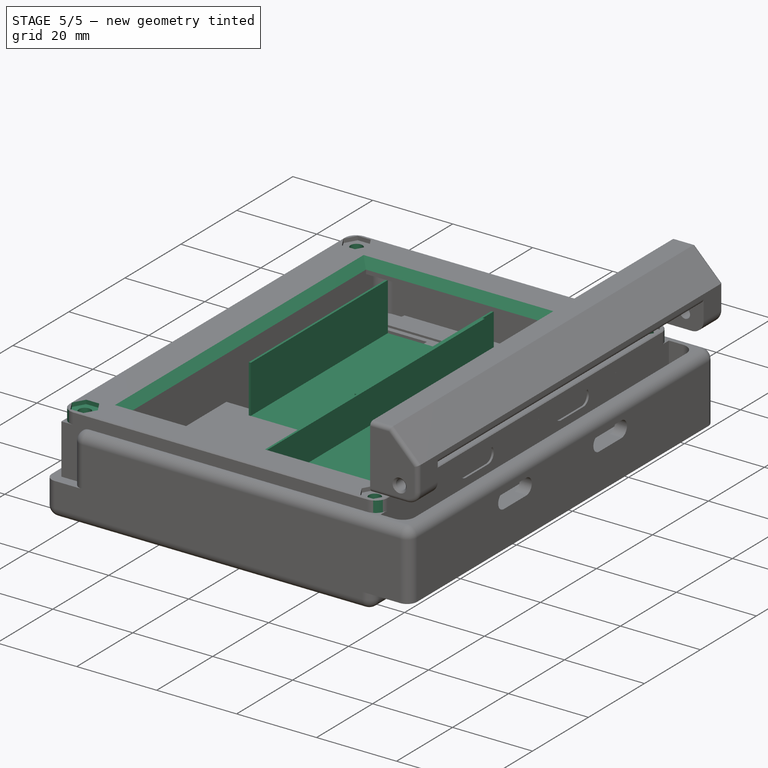
[diagram: stage 5 of 5 — iso view after this stage's code; geometry added in this stage tinted green]
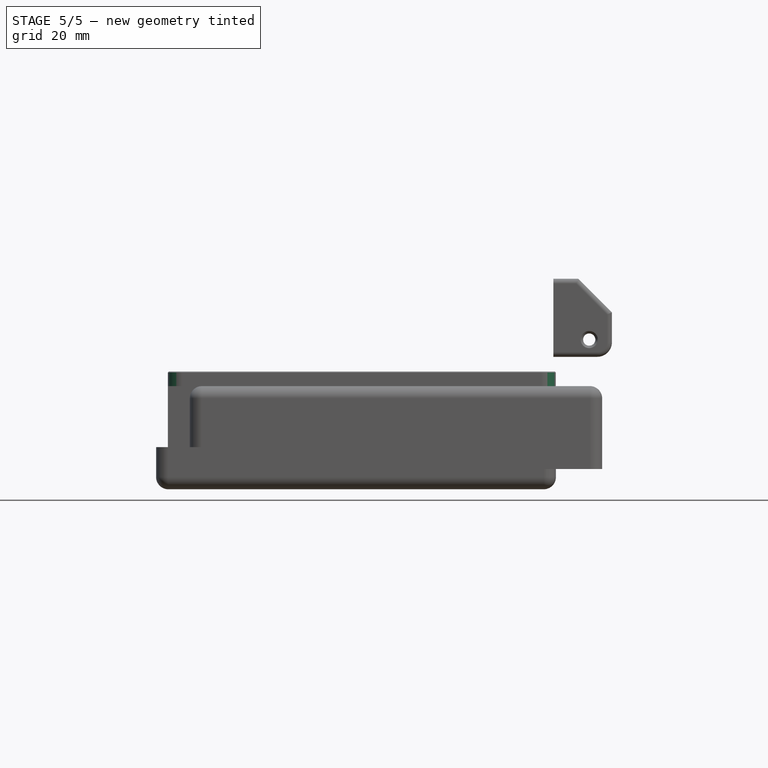
[diagram: stage 5 of 5 — front view after this stage's code; geometry added in this stage tinted green]
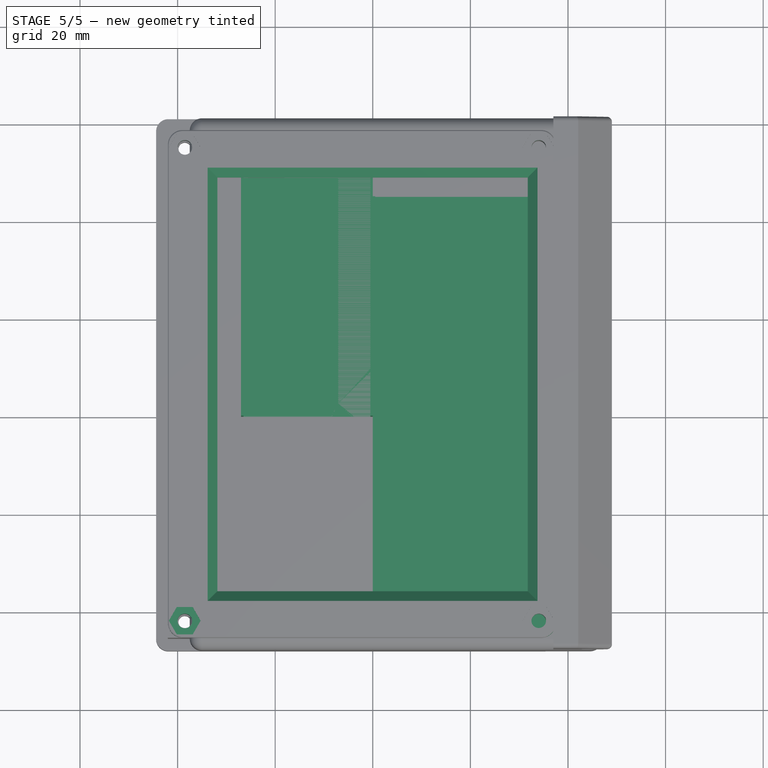
[diagram: stage 5 of 5 — top view after this stage's code; geometry added in this stage tinted green]
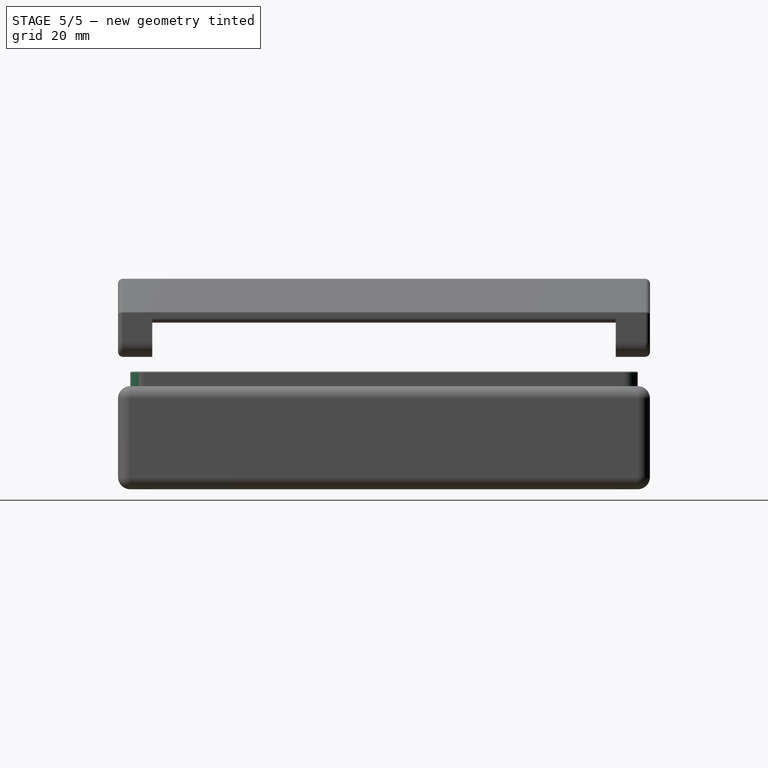
[diagram: stage 5 of 5 — right view after this stage's code; geometry added in this stage tinted green]
FEATURE [Sketcher::SketchObject] Sketch
  FullyConstrained = true
  MapMode = 5
  Placement = pos=(0,0,0) rot=(1,0,0;1.5708rad)
  Support = -> [XZ_Plane001]
  sketch-geometry (8):
    g0: LineSegment StartX=0.5 StartY=-8.5 StartZ=0 EndX=36.5 EndY=-8.5 EndZ=0
    g1: LineSegment StartX=36.5 StartY=-8.5 StartZ=0 EndX=36.5 EndY=0 EndZ=0
    g2: LineSegment StartX=36.5 StartY=0 StartZ=0 EndX=37 EndY=0 EndZ=0
    g3: LineSegment StartX=37 StartY=0 StartZ=0 EndX=37 EndY=-9 EndZ=0
    g4: LineSegment StartX=37 StartY=-9 StartZ=0 EndX=0 EndY=-9 EndZ=0
    g5: LineSegment StartX=0 StartY=-9 StartZ=0 EndX=0 EndY=0 EndZ=0
    g6: LineSegment StartX=0 StartY=0 StartZ=0 EndX=0.5 EndY=0 EndZ=0
    g7: LineSegment StartX=0.5 StartY=0 StartZ=0 EndX=0.5 EndY=-8.5 EndZ=0
  constraints (23):
    c: Horizontal(g0)
    c: Coincident(g0,g1)
    c: PointOnObject(g1,g-1)
    c: Vertical(g1)
    c: Coincident(g1,g2)
    c: PointOnObject(g2,g-1)
    c: Coincident(g2,g3)
    c: Vertical(g3)
    c: DistanceX(g0,g0) = 36
    c: DistanceX(g1,g2) = 0.5
    c: Coincident(g3,g4)
    c: Horizontal(g4)
    c: Coincident(g4,g5)
    c: Vertical(g5)
    c: Coincident(g5,g6)
    c: PointOnObject(g6,g-1)
    c: Coincident(g6,g7)
    c: Coincident(g7,g0)
    c: Vertical(g7)
    c: DistanceX(g6,g6) = 0.5
    c: DistanceY(g4,g0) = 0.5
    c: DistanceY(g7,g7) = 8.5
    c: Coincident(g5,g-1)
FEATURE [PartDesign::Pad] Pad
  Direction = (0,-1,2e-16)
  Length = 90
  Length2 = 10
  Midplane = true
  Placement = pos=(0,0,0) rot=(1,0,0;1.5708rad)
  Profile = -> Sketch
  ReferenceAxis = -> Sketch [N_Axis]
  Type = 0
FEATURE [PartDesign::Body] Body
  Group = -> [Sketch,Pad]
  Origin = -> Origin001
  Tip = -> Pad
FEATURE [App::Part] Part  label="2s lipo tray"
  Group = -> [Body]
  Origin = -> Origin
  Placement = pos=(-7.96,6.11,0) rot=(0,0,1;0rad)
FEATURE [Sketcher::SketchObject] Sketch001
  FullyConstrained = true
  MapMode = 5
  Placement = pos=(0,0,0) rot=(1,0,0;1.5708rad)
  Support = -> [XZ_Plane003]
  sketch-geometry (8):
    g0: LineSegment StartX=-26.5 StartY=-3e-16 StartZ=0 EndX=-26.5 EndY=-12 EndZ=0
    g1: LineSegment StartX=-26.5 StartY=-12 StartZ=0 EndX=-0.5 EndY=-12 EndZ=0
    g2: LineSegment StartX=-0.5 StartY=-12 StartZ=0 EndX=-0.5 EndY=0 EndZ=0
    g3: LineSegment StartX=-26.5 StartY=-3e-16 StartZ=0 EndX=-27 EndY=-3e-16 EndZ=0
    g4: LineSegment StartX=-27 StartY=-3e-16 StartZ=0 EndX=-27 EndY=-12.5 EndZ=0
    g5: LineSegment StartX=-27 StartY=-12.5 StartZ=0 EndX=0 EndY=-12.5 EndZ=0
    g6: LineSegment StartX=0 StartY=-12.5 StartZ=0 EndX=0 EndY=0 EndZ=0
    g7: LineSegment StartX=0 StartY=0 StartZ=0 EndX=-0.5 EndY=0 EndZ=0
  constraints (23):
    c: Coincident(g0,g1)
    c: Coincident(g1,g2)
    c: Horizontal(g1)
    c: Vertical(g0)
    c: Vertical(g2)
    c: DistanceY(g2,g2) = 12
    c: DistanceX(g1,g1) = 26
    c: Equal(g0,g2)
    c: Coincident(g0,g3)
    c: Horizontal(g3)
    c: Coincident(g3,g4)
    c: Vertical(g4)
    c: Coincident(g4,g5)
    c: Horizontal(g5)
    c: Coincident(g5,g6)
    c: Vertical(g6)
    c: Coincident(g6,g7)
    c: Coincident(g7,g2)
    c: Horizontal(g7)
    c: DistanceX(g3,g3) = 0.5
    c: DistanceY(g4,g0) = 0.5
    c: Equal(g7,g3)
    c: Coincident(g6,g-1)
FEATURE [PartDesign::Pad] Pad001
  Direction = (0,-1,2e-16)
  Length = 49
  Length2 = 10
  Placement = pos=(0,0,0) rot=(1,0,0;1.5708rad)
  Profile = -> Sketch001
  ReferenceAxis = -> Sketch001 [N_Axis]
  Reversed = true
  Type = 0
FEATURE [PartDesign::Pocket] Pocket003
  BaseFeature = -> Pocket002
  Direction = (0,0,-1)
  Length = 2
  Length2 = 5
  Profile = -> Sketch006
  ReferenceAxis = -> Sketch006 [N_Axis]
  Reversed = true
  Type = 0
FEATURE [Sketcher::SketchObject] Sketch009
  FullyConstrained = false
  MapMode = 5
  Support = -> [XY_Plane008]
  sketch-geometry (4):
    g0: Circle CenterX=-38.5151 CenterY=-42.0925 CenterZ=0 NormalX=0 NormalY=0 NormalZ=1 AngleXU=0 Radius=1.5
    g1: Circle CenterX=34.0278 CenterY=-42.0925 CenterZ=0 NormalX=0 NormalY=0 NormalZ=1 AngleXU=0 Radius=1.5
    g2: Circle CenterX=34.0278 CenterY=54.9676 CenterZ=0 NormalX=0 NormalY=0 NormalZ=1 AngleXU=0 Radius=1.5
    g3: Circle CenterX=-38.5151 CenterY=54.9676 CenterZ=0 NormalX=0 NormalY=0 NormalZ=1 AngleXU=0 Radius=1.5
  constraints (8):
    c: Equal(g3,g2)
    c: Equal(g3,g1)
    c: Equal(g3,g0)
    c: Diameter(g3) = 3
    c: Horizontal(g0,g1)
    c: Horizontal(g3,g2)
    c: Vertical(g3,g0)
    c: Vertical(g1,g2)
FEATURE [PartDesign::Pocket] Pocket004
  BaseFeature = -> Pocket003
  Direction = (0,0,-1)
  Length = 5
  Length2 = 5
  Midplane = true
  Profile = -> Sketch009
  ReferenceAxis = -> Sketch009 [N_Axis]
  Type = 1
FEATURE [PartDesign::Fillet] Fillet001
  Base = -> Pocket004 [Edge1,Edge5,Edge8,Edge2]
  BaseFeature = -> Pocket004
  Radius = 3
  SupportTransform = false
  UseAllEdges = false
FEATURE [PartDesign::Chamfer] Chamfer
  Angle = 45
  Base = -> Fillet001 [Edge44,Edge43,Edge42,Edge41]
  BaseFeature = -> Fillet001
  ChamferType = 0
  FlipDirection = false
  Size = 2
  Size2 = 1
  SupportTransform = false
  UseAllEdges = false
FEATURE [PartDesign::Chamfer] Chamfer001
  Angle = 45
  Base = -> Chamfer [Edge8,Edge5,Edge9,Edge12,Edge10,Edge7,Edge6,Edge11]
  BaseFeature = -> Chamfer
  ChamferType = 0
  FlipDirection = false
  Size = 0.2
  Size2 = 1
  SupportTransform = false
  UseAllEdges = false
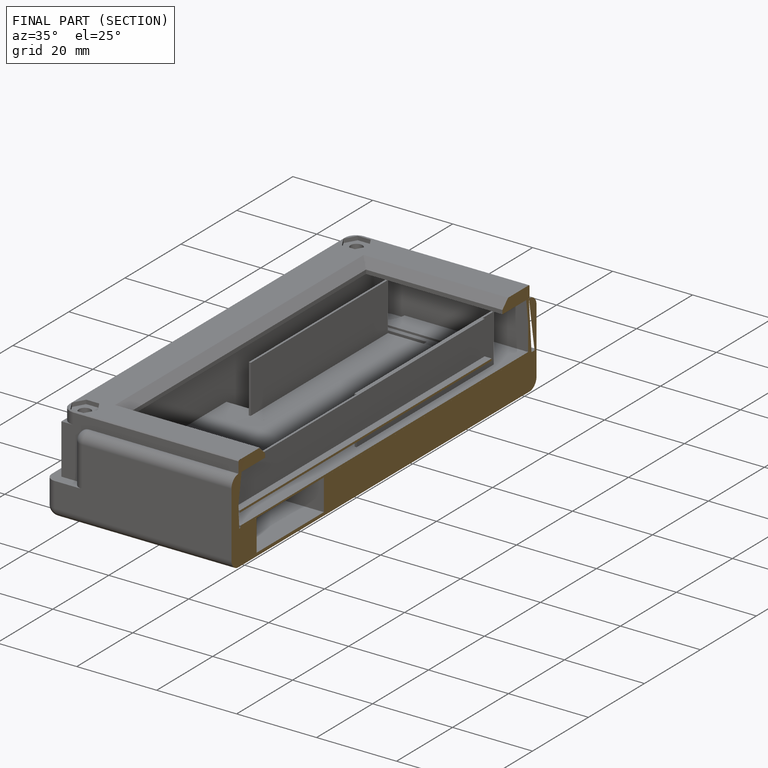
[diagram: finished part — half-section view (interior)]
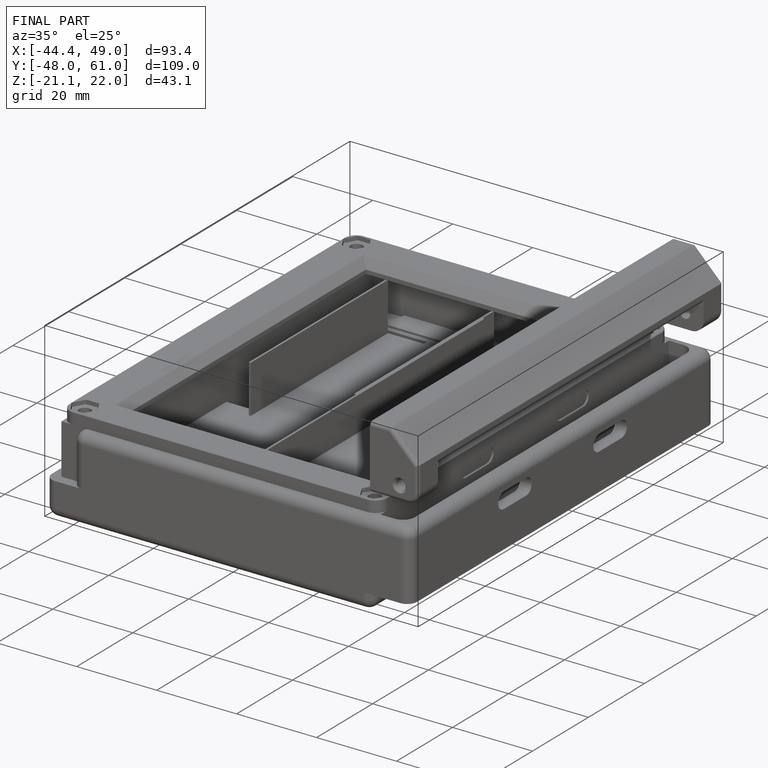
[diagram: finished part — iso view with bounding-box wireframe]
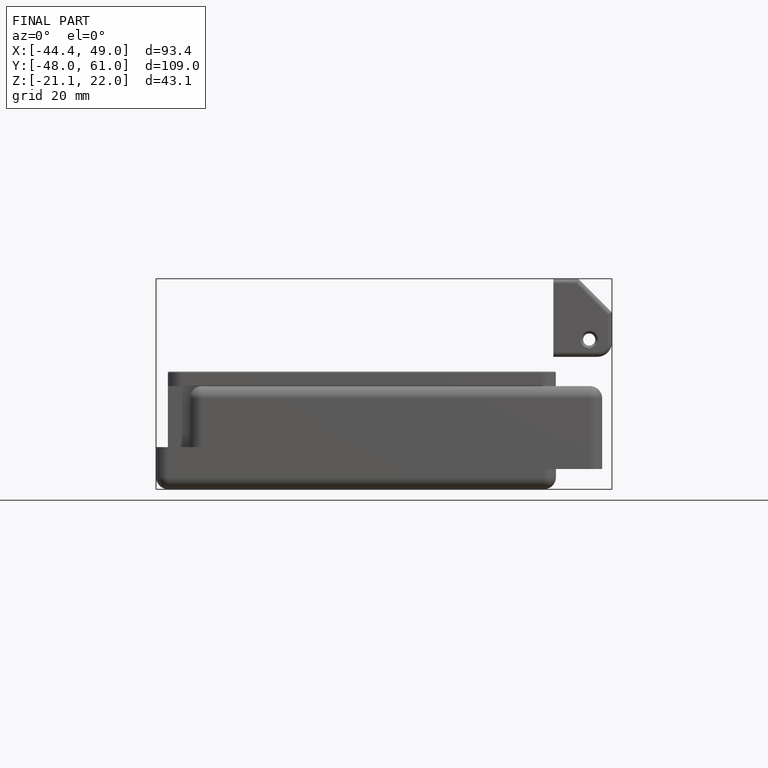
[diagram: finished part — front view with bounding-box wireframe]
